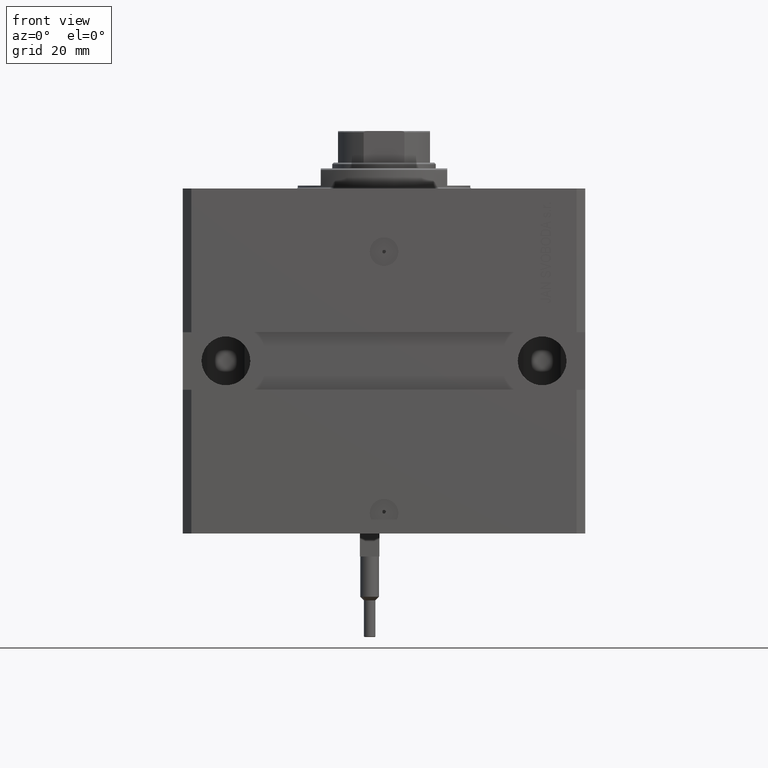
[diagram: clean part render]
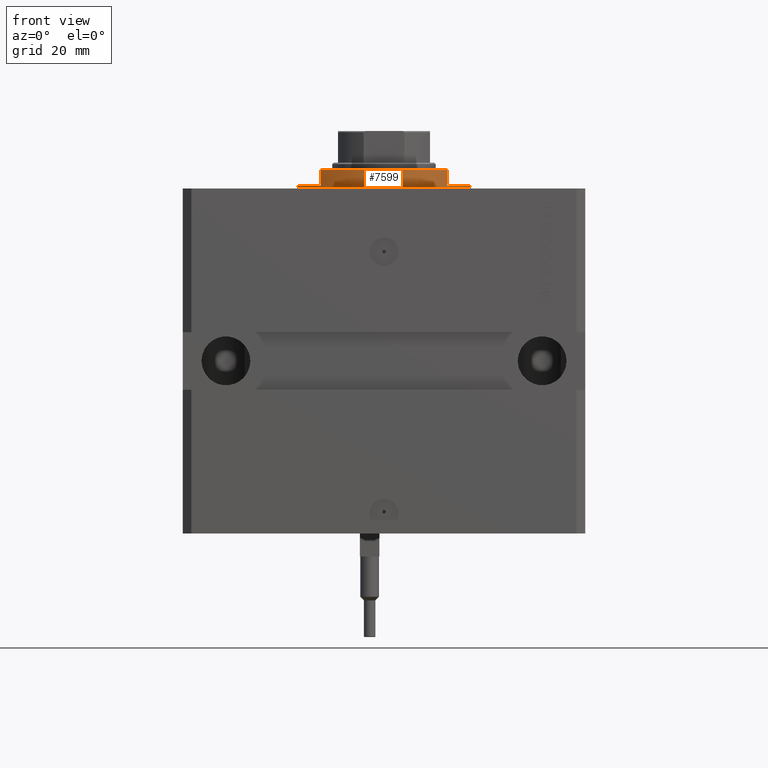
[diagram: same view with one face highlighted and labeled with its STEP entity id]
A machine part, front view. The second image highlights one B-rep face of the part: STEP entity #7599.
In plain terms, the highlighted cylindrical surface (partial cylindrical patch) has radius 30 mm, axis along (0, 0, -1).
Its self-contained STEP definition (entity closure, byte-faithful):
#901 = CARTESIAN_POINT ( 'NONE',  ( 0.000000000000000000, 0.000000000000000000, -1.000000000000000000 ) ) ;
#1982 = VERTEX_POINT ( 'NONE', #10670 ) ;
#2132 = AXIS2_PLACEMENT_3D ( 'NONE', #45583, #11221, #12919 ) ;
#3832 = DIRECTION ( 'NONE',  ( 0.000000000000000000, 0.000000000000000000, -1.000000000000000000 ) ) ;
#3941 = VERTEX_POINT ( 'NONE', #42869 ) ;
#4660 = ORIENTED_EDGE ( 'NONE', *, *, #23770, .F. ) ;
#4878 = CYLINDRICAL_SURFACE ( 'NONE', #37725, 30.00000000000000000 ) ;
#7491 = VERTEX_POINT ( 'NONE', #23683 ) ;
#7599 = ADVANCED_FACE ( 'NONE', ( #27698 ), #4878, .T. ) ;
#7812 = CARTESIAN_POINT ( 'NONE',  ( -22.00000000000000000, -20.39607805437114152, -1.000000000000000000 ) ) ;
#8573 = ORIENTED_EDGE ( 'NONE', *, *, #37126, .T. ) ;
#8738 = CARTESIAN_POINT ( 'NONE',  ( 0.000000000000000000, 0.000000000000000000, -0.4999999999999995559 ) ) ;
#8825 = CARTESIAN_POINT ( 'NONE',  ( 0.000000000000000000, 0.000000000000000000, -6.500000000000006217 ) ) ;
#9069 = CARTESIAN_POINT ( 'NONE',  ( -22.00000000000000000, -20.39607805437114152, -6.500000000000006217 ) ) ;
#9294 = ORIENTED_EDGE ( 'NONE', *, *, #11675, .F. ) ;
#9957 = EDGE_CURVE ( 'NONE', #16987, #3941, #33661, .T. ) ;
#9998 = CIRCLE ( 'NONE', #13965, 30.00000000000000000 ) ;
#10390 = CARTESIAN_POINT ( 'NONE',  ( -30.00000000000000000, 3.673940397442059178E-15, -7.000000000000000000 ) ) ;
#10658 = VECTOR ( 'NONE', #48772, 1000.000000000000000 ) ;
#10670 = CARTESIAN_POINT ( 'NONE',  ( 30.00000000000000000, 0.000000000000000000, -1.000000000000000000 ) ) ;
#11040 = ORIENTED_EDGE ( 'NONE', *, *, #41488, .T. ) ;
#11221 = DIRECTION ( 'NONE',  ( 0.000000000000000000, 0.000000000000000000, -1.000000000000000000 ) ) ;
#11487 = AXIS2_PLACEMENT_3D ( 'NONE', #8738, #20499, #36040 ) ;
#11675 = EDGE_CURVE ( 'NONE', #14371, #7491, #41479, .T. ) ;
#12281 = VERTEX_POINT ( 'NONE', #19998 ) ;
#12919 = DIRECTION ( 'NONE',  ( -1.000000000000000000, 0.000000000000000000, 0.000000000000000000 ) ) ;
#13269 = EDGE_CURVE ( 'NONE', #12281, #7491, #21040, .T. ) ;
#13965 = AXIS2_PLACEMENT_3D ( 'NONE', #901, #39014, #19943 ) ;
#14371 = VERTEX_POINT ( 'NONE', #26730 ) ;
#16987 = VERTEX_POINT ( 'NONE', #19648 ) ;
#19648 = CARTESIAN_POINT ( 'NONE',  ( 22.00000000000000000, -20.39607805437114152, -1.000000000000000000 ) ) ;
#19943 = DIRECTION ( 'NONE',  ( -1.000000000000000000, 0.000000000000000000, 0.000000000000000000 ) ) ;
#19998 = CARTESIAN_POINT ( 'NONE',  ( 30.00000000000000000, 0.000000000000000000, -0.4999999999999995559 ) ) ;
#20197 = LINE ( 'NONE', #47777, #47450 ) ;
#20499 = DIRECTION ( 'NONE',  ( -0.000000000000000000, -0.000000000000000000, -1.000000000000000000 ) ) ;
#20592 = VERTEX_POINT ( 'NONE', #9069 ) ;
#20596 = DIRECTION ( 'NONE',  ( 0.000000000000000000, 0.000000000000000000, 1.000000000000000000 ) ) ;
#20648 = DIRECTION ( 'NONE',  ( 1.000000000000000000, 0.000000000000000000, 0.000000000000000000 ) ) ;
#21040 = CIRCLE ( 'NONE', #11487, 30.00000000000000000 ) ;
#22835 = ORIENTED_EDGE ( 'NONE', *, *, #40758, .F. ) ;
#23683 = CARTESIAN_POINT ( 'NONE',  ( -30.00000000000000000, 3.673940397442059178E-15, -0.4999999999999995559 ) ) ;
#23752 = CIRCLE ( 'NONE', #2132, 30.00000000000000000 ) ;
#23770 = EDGE_CURVE ( 'NONE', #1982, #16987, #23752, .T. ) ;
#24172 = CARTESIAN_POINT ( 'NONE',  ( 0.000000000000000000, 0.000000000000000000, -7.000000000000000000 ) ) ;
#26730 = CARTESIAN_POINT ( 'NONE',  ( -30.00000000000000000, 3.673940397442059178E-15, -1.000000000000000000 ) ) ;
#27698 = FACE_OUTER_BOUND ( 'NONE', #32450, .T. ) ;
#27962 = ORIENTED_EDGE ( 'NONE', *, *, #36674, .T. ) ;
#28726 = DIRECTION ( 'NONE',  ( -0.000000000000000000, -0.000000000000000000, 1.000000000000000000 ) ) ;
#30153 = CARTESIAN_POINT ( 'NONE',  ( 22.00000000000000000, -20.39607805437114152, -7.000000000000000000 ) ) ;
#30287 = CARTESIAN_POINT ( 'NONE',  ( -22.00000000000000000, -20.39607805437114152, -7.000000000000000000 ) ) ;
#31220 = ORIENTED_EDGE ( 'NONE', *, *, #9957, .F. ) ;
#32450 = EDGE_LOOP ( 'NONE', ( #9294, #22835, #11040, #27962, #31220, #4660, #8573, #39982 ) ) ;
#33661 = LINE ( 'NONE', #30153, #43403 ) ;
#35890 = DIRECTION ( 'NONE',  ( -1.000000000000000000, 0.000000000000000000, 0.000000000000000000 ) ) ;
#36040 = DIRECTION ( 'NONE',  ( 1.000000000000000000, 0.000000000000000000, 0.000000000000000000 ) ) ;
#36674 = EDGE_CURVE ( 'NONE', #20592, #3941, #37849, .T. ) ;
#37126 = EDGE_CURVE ( 'NONE', #1982, #12281, #20197, .T. ) ;
#37725 = AXIS2_PLACEMENT_3D ( 'NONE', #24172, #42989, #20648 ) ;
#37849 = CIRCLE ( 'NONE', #40226, 30.00000000000000000 ) ;
#39014 = DIRECTION ( 'NONE',  ( 0.000000000000000000, 0.000000000000000000, -1.000000000000000000 ) ) ;
#39982 = ORIENTED_EDGE ( 'NONE', *, *, #13269, .T. ) ;
#40226 = AXIS2_PLACEMENT_3D ( 'NONE', #8825, #20596, #35890 ) ;
#40758 = EDGE_CURVE ( 'NONE', #47861, #14371, #9998, .T. ) ;
#41069 = DIRECTION ( 'NONE',  ( 0.000000000000000000, 0.000000000000000000, -1.000000000000000000 ) ) ;
#41479 = LINE ( 'NONE', #10390, #10658 ) ;
#41488 = EDGE_CURVE ( 'NONE', #47861, #20592, #45091, .T. ) ;
#42869 = CARTESIAN_POINT ( 'NONE',  ( 22.00000000000000000, -20.39607805437114152, -6.500000000000006217 ) ) ;
#42989 = DIRECTION ( 'NONE',  ( -0.000000000000000000, -0.000000000000000000, 1.000000000000000000 ) ) ;
#43403 = VECTOR ( 'NONE', #3832, 1000.000000000000000 ) ;
#43605 = VECTOR ( 'NONE', #41069, 1000.000000000000000 ) ;
#45091 = LINE ( 'NONE', #30287, #43605 ) ;
#45583 = CARTESIAN_POINT ( 'NONE',  ( 0.000000000000000000, 0.000000000000000000, -1.000000000000000000 ) ) ;
#47450 = VECTOR ( 'NONE', #28726, 1000.000000000000000 ) ;
#47777 = CARTESIAN_POINT ( 'NONE',  ( 30.00000000000000000, 0.000000000000000000, -7.000000000000000000 ) ) ;
#47861 = VERTEX_POINT ( 'NONE', #7812 ) ;
#48772 = DIRECTION ( 'NONE',  ( -0.000000000000000000, -0.000000000000000000, 1.000000000000000000 ) ) ;